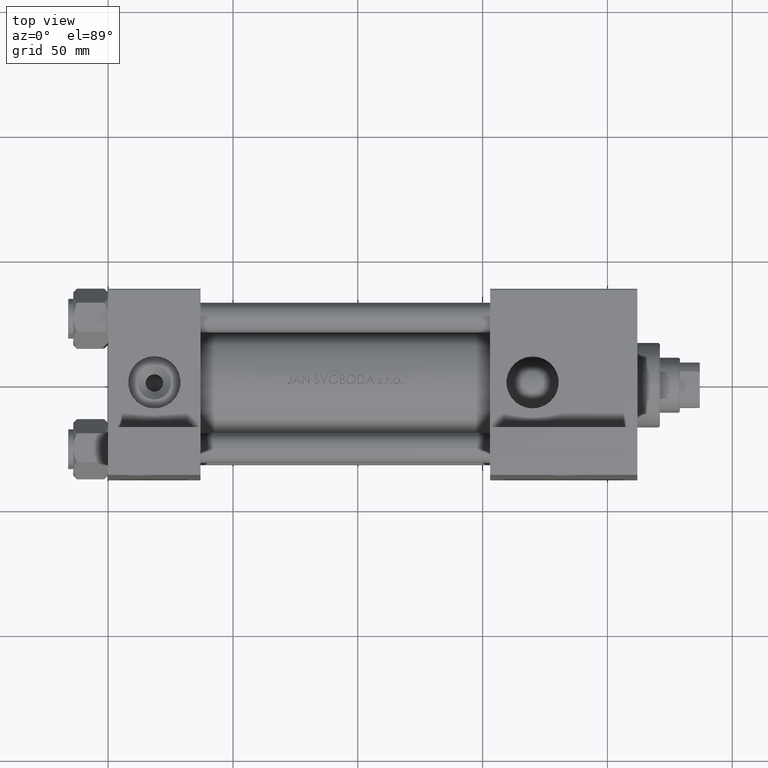
[diagram: clean part render]
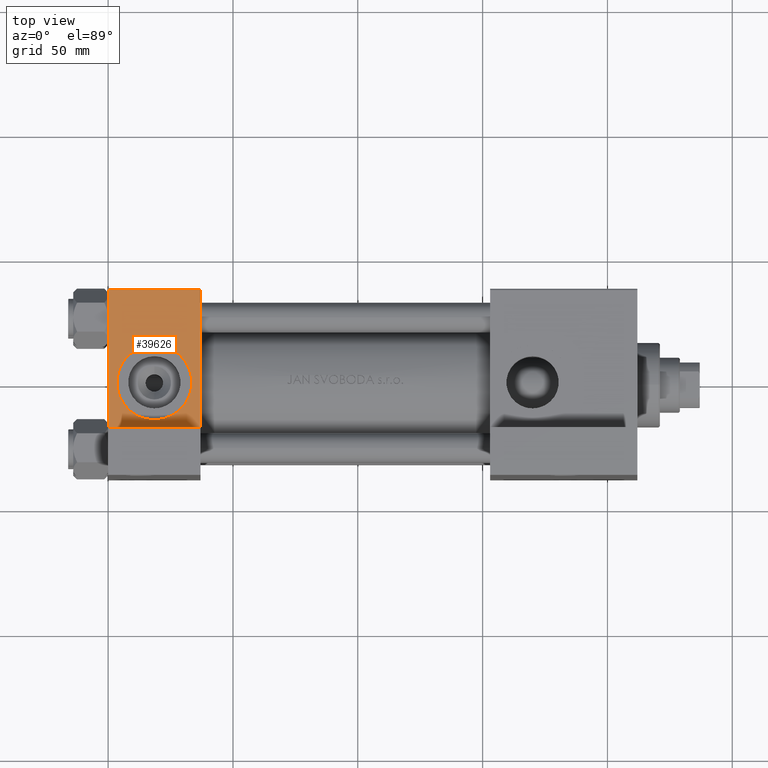
[diagram: same view with one face highlighted and labeled with its STEP entity id]
A machine part, top view. The second image highlights one B-rep face of the part: STEP entity #39626.
In plain terms, the highlighted planar face has unit normal (0, 0, -1).
Its self-contained STEP definition (entity closure, byte-faithful):
#1703 = FACE_BOUND ( 'NONE', #44068, .T. ) ;
#1953 = VERTEX_POINT ( 'NONE', #46268 ) ;
#2453 = CIRCLE ( 'NONE', #46190, 15.00000000000000178 ) ;
#4733 = VECTOR ( 'NONE', #43056, 1000.000000000000000 ) ;
#5221 = DIRECTION ( 'NONE',  ( -1.000000000000000000, 0.000000000000000000, 0.000000000000000000 ) ) ;
#5798 = VECTOR ( 'NONE', #14271, 1000.000000000000000 ) ;
#6276 = LINE ( 'NONE', #21459, #26481 ) ;
#6342 = VERTEX_POINT ( 'NONE', #27832 ) ;
#6410 = CIRCLE ( 'NONE', #19088, 15.00000000000000178 ) ;
#8464 = CARTESIAN_POINT ( 'NONE',  ( 37.00000000000000000, -37.50000000000000711, 36.99999999999999289 ) ) ;
#8792 = VERTEX_POINT ( 'NONE', #44076 ) ;
#9394 = DIRECTION ( 'NONE',  ( -0.000000000000000000, 1.000000000000000000, 9.251858538542971581E-17 ) ) ;
#10148 = EDGE_CURVE ( 'NONE', #1953, #19180, #15639, .T. ) ;
#10781 = LINE ( 'NONE', #48690, #5798 ) ;
#12644 = CARTESIAN_POINT ( 'NONE',  ( -7.145701223179000102E-16, -37.50000000000001421, -18.49999999999999645 ) ) ;
#12964 = EDGE_CURVE ( 'NONE', #6342, #44833, #6410, .T. ) ;
#13156 = EDGE_CURVE ( 'NONE', #44833, #6342, #2453, .T. ) ;
#13448 = EDGE_LOOP ( 'NONE', ( #43168, #42906, #21813, #14336 ) ) ;
#14271 = DIRECTION ( 'NONE',  ( 0.000000000000000000, 9.251858538542971581E-17, -1.000000000000000000 ) ) ;
#14336 = ORIENTED_EDGE ( 'NONE', *, *, #20018, .T. ) ;
#15639 = LINE ( 'NONE', #12644, #4733 ) ;
#15679 = LINE ( 'NONE', #8464, #45914 ) ;
#15682 = DIRECTION ( 'NONE',  ( 0.000000000000000000, 0.000000000000000000, -1.000000000000000000 ) ) ;
#17223 = ORIENTED_EDGE ( 'NONE', *, *, #13156, .F. ) ;
#17895 = DIRECTION ( 'NONE',  ( 0.000000000000000000, -1.000000000000000000, -8.673617379884036705E-17 ) ) ;
#17962 = DIRECTION ( 'NONE',  ( 0.000000000000000000, 9.251858538542971581E-17, -1.000000000000000000 ) ) ;
#19088 = AXIS2_PLACEMENT_3D ( 'NONE', #37865, #45366, #15682 ) ;
#19180 = VERTEX_POINT ( 'NONE', #29382 ) ;
#20018 = EDGE_CURVE ( 'NONE', #43762, #19180, #10781, .T. ) ;
#21459 = CARTESIAN_POINT ( 'NONE',  ( 37.00000000000000000, -37.50000000000000711, 37.49999999999999289 ) ) ;
#21813 = ORIENTED_EDGE ( 'NONE', *, *, #38104, .T. ) ;
#23360 = EDGE_CURVE ( 'NONE', #8792, #1953, #6276, .T. ) ;
#24600 = DIRECTION ( 'NONE',  ( 0.000000000000000000, -9.251858538542971581E-17, 1.000000000000000000 ) ) ;
#26481 = VECTOR ( 'NONE', #17962, 1000.000000000000000 ) ;
#27832 = CARTESIAN_POINT ( 'NONE',  ( 18.50000000000000000, -37.50000000000000711, -15.00000000000000533 ) ) ;
#27846 = CARTESIAN_POINT ( 'NONE',  ( 0.000000000000000000, -37.50000000000000711, 36.99999999999999289 ) ) ;
#28606 = CARTESIAN_POINT ( 'NONE',  ( 18.50000000000000000, -37.50000000000000711, -3.469446951953614978E-15 ) ) ;
#29382 = CARTESIAN_POINT ( 'NONE',  ( -7.145701223179004046E-16, -37.50000000000000711, -18.50000000000000355 ) ) ;
#32061 = PLANE ( 'NONE',  #33231 ) ;
#33231 = AXIS2_PLACEMENT_3D ( 'NONE', #47290, #9394, #24600 ) ;
#36591 = DIRECTION ( 'NONE',  ( 0.000000000000000000, 0.000000000000000000, -1.000000000000000000 ) ) ;
#37865 = CARTESIAN_POINT ( 'NONE',  ( 18.50000000000000000, -37.50000000000000711, -3.469446951953614978E-15 ) ) ;
#38104 = EDGE_CURVE ( 'NONE', #8792, #43762, #15679, .T. ) ;
#38518 = CARTESIAN_POINT ( 'NONE',  ( 18.50000000000000355, -37.50000000000000711, 14.99999999999999822 ) ) ;
#39626 = ADVANCED_FACE ( 'NONE', ( #1703, #43546 ), #32061, .F. ) ;
#42906 = ORIENTED_EDGE ( 'NONE', *, *, #23360, .F. ) ;
#43056 = DIRECTION ( 'NONE',  ( -1.000000000000000000, 0.000000000000000000, 0.000000000000000000 ) ) ;
#43168 = ORIENTED_EDGE ( 'NONE', *, *, #10148, .F. ) ;
#43546 = FACE_OUTER_BOUND ( 'NONE', #13448, .T. ) ;
#43762 = VERTEX_POINT ( 'NONE', #27846 ) ;
#44068 = EDGE_LOOP ( 'NONE', ( #47564, #17223 ) ) ;
#44076 = CARTESIAN_POINT ( 'NONE',  ( 37.00000000000000000, -37.50000000000000711, 36.99999999999999289 ) ) ;
#44833 = VERTEX_POINT ( 'NONE', #38518 ) ;
#45366 = DIRECTION ( 'NONE',  ( 0.000000000000000000, -1.000000000000000000, -8.673617379884036705E-17 ) ) ;
#45914 = VECTOR ( 'NONE', #5221, 1000.000000000000000 ) ;
#46190 = AXIS2_PLACEMENT_3D ( 'NONE', #28606, #17895, #36591 ) ;
#46268 = CARTESIAN_POINT ( 'NONE',  ( 37.00000000000000000, -37.50000000000000000, -18.50000000000000355 ) ) ;
#47290 = CARTESIAN_POINT ( 'NONE',  ( 37.00000000000000000, -37.50000000000000711, 37.49999999999999289 ) ) ;
#47564 = ORIENTED_EDGE ( 'NONE', *, *, #12964, .F. ) ;
#48690 = CARTESIAN_POINT ( 'NONE',  ( 0.000000000000000000, -37.50000000000000711, 37.49999999999999289 ) ) ;